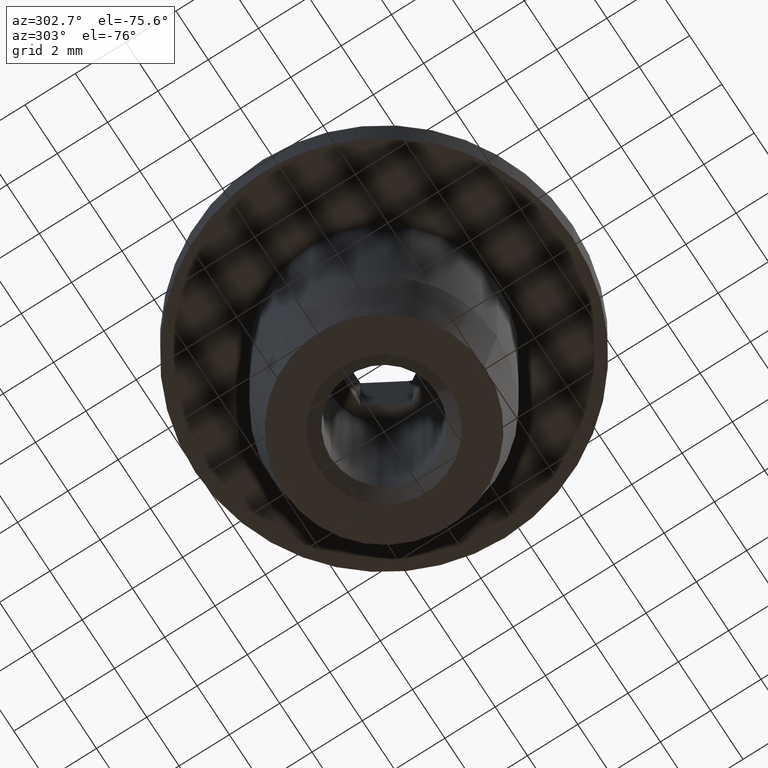
[diagram: clean part render]
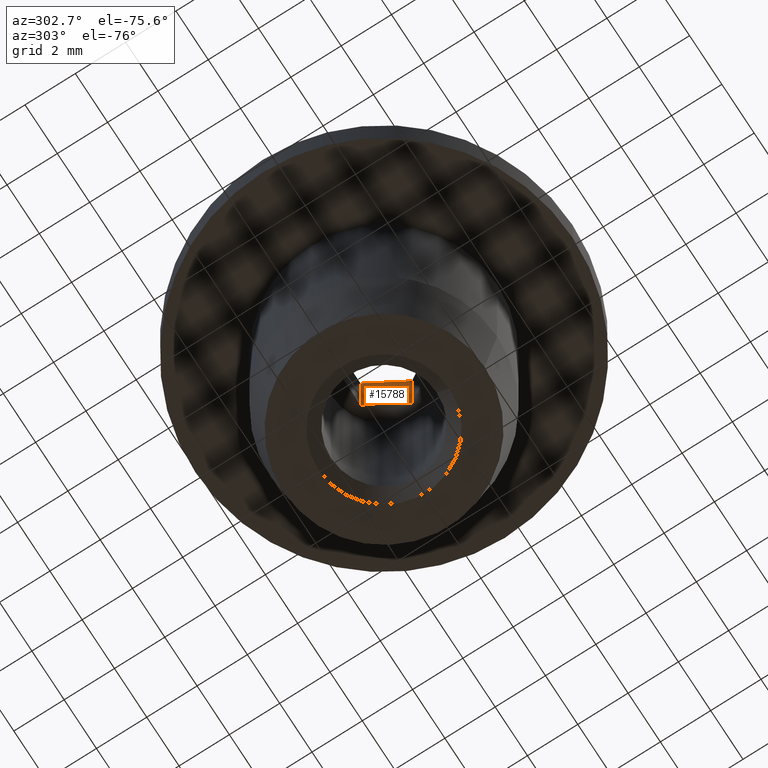
[diagram: same view with one face highlighted and labeled with its STEP entity id]
A machine part, auxiliary view. The second image highlights one B-rep face of the part: STEP entity #15788.
In plain terms, the highlighted planar face has unit normal (0.866, 0.5, 0).
Its self-contained STEP definition (entity closure, byte-faithful):
#114 = LINE ( 'NONE', #11381, #14241 ) ;
#732 = VERTEX_POINT ( 'NONE', #14130 ) ;
#1053 = EDGE_CURVE ( 'NONE', #1394, #11220, #11688, .T. ) ;
#1248 = VECTOR ( 'NONE', #4332, 1000.000000000000000 ) ;
#1394 = VERTEX_POINT ( 'NONE', #12107 ) ;
#1395 = EDGE_CURVE ( 'NONE', #11220, #11248, #2034, .T. ) ;
#2034 = LINE ( 'NONE', #7879, #5611 ) ;
#3104 = CARTESIAN_POINT ( 'NONE',  ( 1.732050807568877000, -2.115287145873185000E-016, -6.100000000000000500 ) ) ;
#3198 = CARTESIAN_POINT ( 'NONE',  ( 1.732050807568877000, -2.115287145873185000E-016, -6.100000000000000500 ) ) ;
#3616 = FACE_OUTER_BOUND ( 'NONE', #15782, .T. ) ;
#4332 = DIRECTION ( 'NONE',  ( -0.0000000000000000000, -0.0000000000000000000, 1.000000000000000000 ) ) ;
#4533 = EDGE_CURVE ( 'NONE', #732, #11248, #114, .T. ) ;
#5611 = VECTOR ( 'NONE', #7550, 1000.000000000000000 ) ;
#5616 = LINE ( 'NONE', #3104, #1248 ) ;
#5638 = DIRECTION ( 'NONE',  ( 0.8660254037844386000, 0.5000000000000003300, 0.0000000000000000000 ) ) ;
#7443 = EDGE_CURVE ( 'NONE', #1394, #732, #5616, .T. ) ;
#7550 = DIRECTION ( 'NONE',  ( -0.0000000000000000000, -0.0000000000000000000, 1.000000000000000000 ) ) ;
#7879 = CARTESIAN_POINT ( 'NONE',  ( 0.8660254037844382600, 1.499999999999999100, -6.100000000000000500 ) ) ;
#8053 = CARTESIAN_POINT ( 'NONE',  ( 0.8660254037844382600, 1.499999999999999100, 3.121086179534854600 ) ) ;
#8109 = CARTESIAN_POINT ( 'NONE',  ( 1.007400162919687600, 1.255131734269935300, 3.206032704825195500 ) ) ;
#8172 = ORIENTED_EDGE ( 'NONE', *, *, #7443, .T. ) ;
#9553 = ORIENTED_EDGE ( 'NONE', *, *, #4533, .T. ) ;
#9684 = CARTESIAN_POINT ( 'NONE',  ( 0.8660254037844382600, 1.499999999999999100, 6.100000000000000500 ) ) ;
#11220 = VERTEX_POINT ( 'NONE', #11927 ) ;
#11248 = VERTEX_POINT ( 'NONE', #9684 ) ;
#11381 = CARTESIAN_POINT ( 'NONE',  ( 1.732050807568877000, -2.115287145873185000E-016, 6.100000000000000500 ) ) ;
#11433 = DIRECTION ( 'NONE',  ( -0.5000000000000001100, 0.8660254037844384900, 0.0000000000000000000 ) ) ;
#11688 = B_SPLINE_CURVE_WITH_KNOTS ( 'NONE', 3,
 ( #14529, #15689, #13187, #15737, #8109, #8053 ),
 .UNSPECIFIED., .F., .F.,
 ( 4, 2, 4 ),
 ( 2.386344511330907500E-007, 0.0008754567967135304800, 0.001750674958975928000 ),
 .UNSPECIFIED. ) ;
#11927 = CARTESIAN_POINT ( 'NONE',  ( 0.8660254037844382600, 1.499999999999999100, 3.121086179534854600 ) ) ;
#12107 = CARTESIAN_POINT ( 'NONE',  ( 1.732050807568877000, -1.371067162897317400E-016, 3.121086179534854600 ) ) ;
#12707 = ORIENTED_EDGE ( 'NONE', *, *, #1053, .F. ) ;
#13187 = CARTESIAN_POINT ( 'NONE',  ( 1.447453509345949300, 0.4929369802189426100, 3.260289161047158900 ) ) ;
#13232 = PLANE ( 'NONE',  #16184 ) ;
#14130 = CARTESIAN_POINT ( 'NONE',  ( 1.732050807568877000, -2.115287145873185000E-016, 6.100000000000000500 ) ) ;
#14179 = ORIENTED_EDGE ( 'NONE', *, *, #1395, .F. ) ;
#14241 = VECTOR ( 'NONE', #11433, 1000.000000000000200 ) ;
#14529 = CARTESIAN_POINT ( 'NONE',  ( 1.732050807568877000, -1.371067162897317400E-016, 3.121086179534854600 ) ) ;
#15689 = CARTESIAN_POINT ( 'NONE',  ( 1.590883819040530800, 0.2445083964825882400, 3.205907863651250400 ) ) ;
#15737 = CARTESIAN_POINT ( 'NONE',  ( 1.152539788755562000, 1.003742528130664200, 3.260742109589234600 ) ) ;
#15782 = EDGE_LOOP ( 'NONE', ( #8172, #9553, #14179, #12707 ) ) ;
#15788 = ADVANCED_FACE ( 'NONE', ( #3616 ), #13232, .F. ) ;
#15837 = DIRECTION ( 'NONE',  ( -0.5000000000000002200, 0.8660254037844384900, 0.0000000000000000000 ) ) ;
#16184 = AXIS2_PLACEMENT_3D ( 'NONE', #3198, #5638, #15837 ) ;